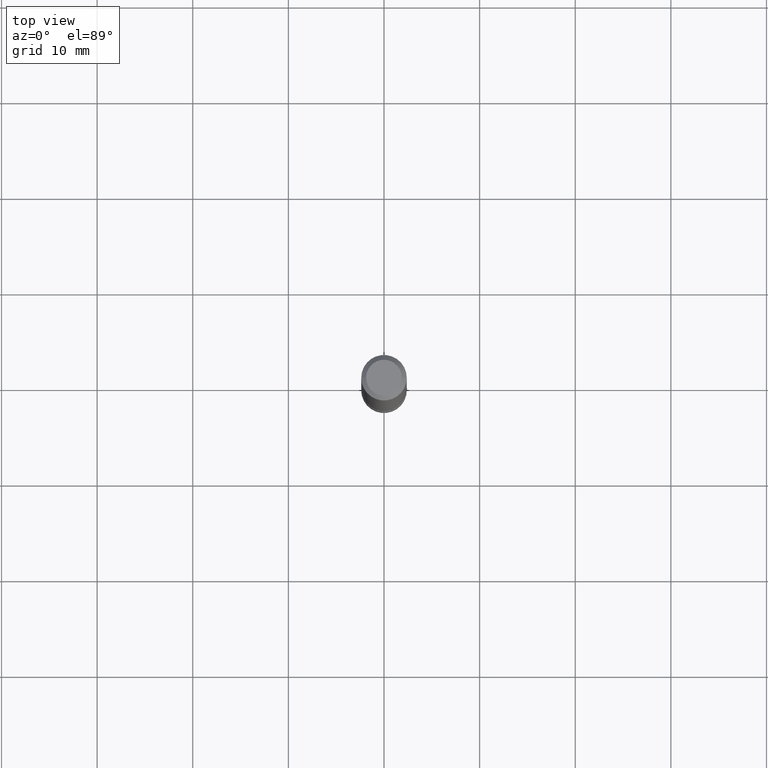
[diagram: clean part render]
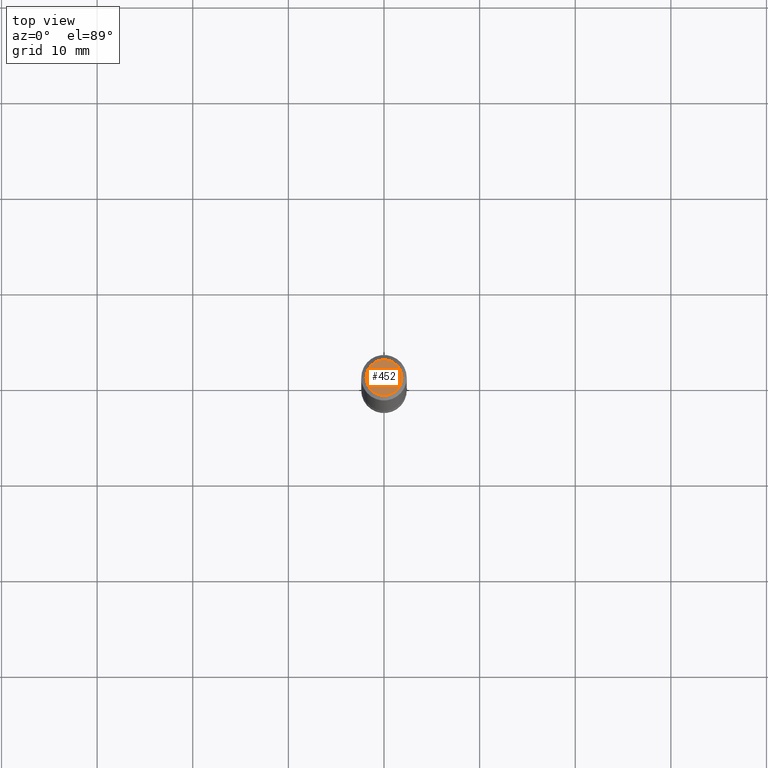
[diagram: same view with one face highlighted and labeled with its STEP entity id]
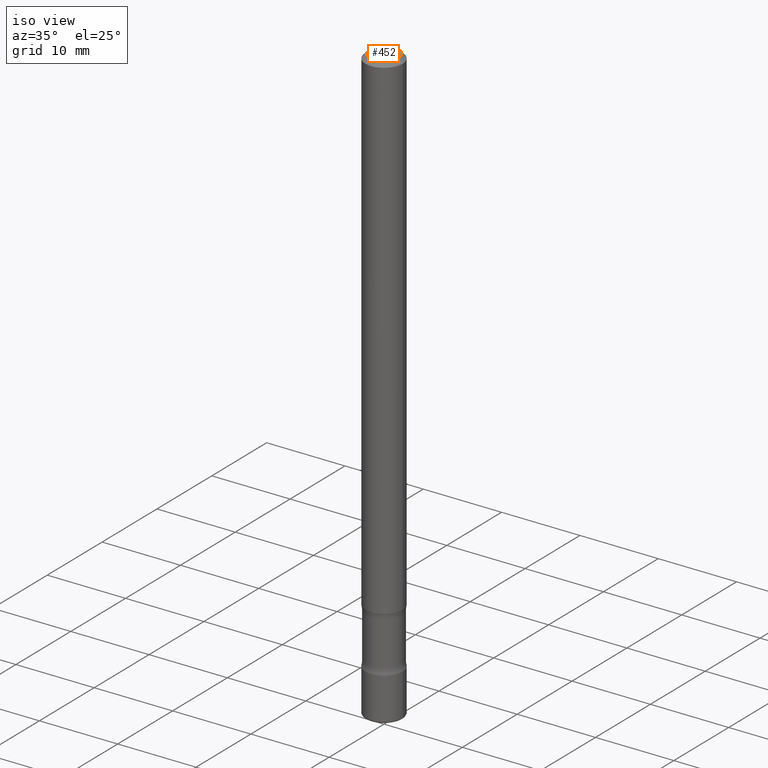
[diagram: same view with one face highlighted and labeled with its STEP entity id]
A machine part, top view. The second image highlights one B-rep face of the part: STEP entity #452.
A second angle (iso view) of the same face is appended — the face is thin or edge-on in the first view.
In plain terms, the highlighted planar face has unit normal (0, -0, -1).
Its self-contained STEP definition (entity closure, byte-faithful):
#20 = AXIS2_PLACEMENT_3D ( 'NONE', #793, #287, #477 ) ;
#22 = DIRECTION ( 'NONE',  ( 1.000000000000000000, -6.982962677686266711E-15, 4.876176775795935232E-29 ) ) ;
#46 = DIRECTION ( 'NONE',  ( 2.438088387897960049E-29, -3.491481338843145188E-15, -1.000000000000000000 ) ) ;
#51 = CARTESIAN_POINT ( 'NONE',  ( -0.07374999999999967693, 5.499083108677911763E-16, -3.723527850031178556E-30 ) ) ;
#93 = CIRCLE ( 'NONE', #20, 0.07374999999999967693 ) ;
#94 = ORIENTED_EDGE ( 'NONE', *, *, #771, .T. ) ;
#99 = FACE_OUTER_BOUND ( 'NONE', #782, .T. ) ;
#108 = DIRECTION ( 'NONE',  ( -1.000000000000000000, 6.982962677686265922E-15, -4.876176775795935793E-29 ) ) ;
#114 = CARTESIAN_POINT ( 'NONE',  ( 0.07374999999999967693, -6.094815207017949365E-16, 3.931526600461590341E-30 ) ) ;
#244 = CIRCLE ( 'NONE', #619, 0.07374999999999967693 ) ;
#285 = ORIENTED_EDGE ( 'NONE', *, *, #413, .T. ) ;
#287 = DIRECTION ( 'NONE',  ( -2.445468806185136597E-29, 3.491481338843145583E-15, 1.000000000000000000 ) ) ;
#396 = DIRECTION ( 'NONE',  ( -2.445468806185136597E-29, 3.491481338843145583E-15, 1.000000000000000000 ) ) ;
#398 = AXIS2_PLACEMENT_3D ( 'NONE', #789, #46, #108 ) ;
#413 = EDGE_CURVE ( 'NONE', #481, #414, #93, .T. ) ;
#414 = VERTEX_POINT ( 'NONE', #51 ) ;
#452 = ADVANCED_FACE ( 'NONE', ( #99 ), #605, .F. ) ;
#477 = DIRECTION ( 'NONE',  ( 1.000000000000000000, -6.982962677686266711E-15, 4.876176775795935232E-29 ) ) ;
#481 = VERTEX_POINT ( 'NONE', #114 ) ;
#605 = PLANE ( 'NONE',  #398 ) ;
#619 = AXIS2_PLACEMENT_3D ( 'NONE', #708, #396, #22 ) ;
#708 = CARTESIAN_POINT ( 'NONE',  ( 0.000000000000000000, 0.000000000000000000, 0.000000000000000000 ) ) ;
#771 = EDGE_CURVE ( 'NONE', #414, #481, #244, .T. ) ;
#782 = EDGE_LOOP ( 'NONE', ( #94, #285 ) ) ;
#789 = CARTESIAN_POINT ( 'NONE',  ( 5.149934974793598230E-16, 0.07374999999999967693, -2.574967487396808483E-16 ) ) ;
#793 = CARTESIAN_POINT ( 'NONE',  ( 0.000000000000000000, 0.000000000000000000, 0.000000000000000000 ) ) ;